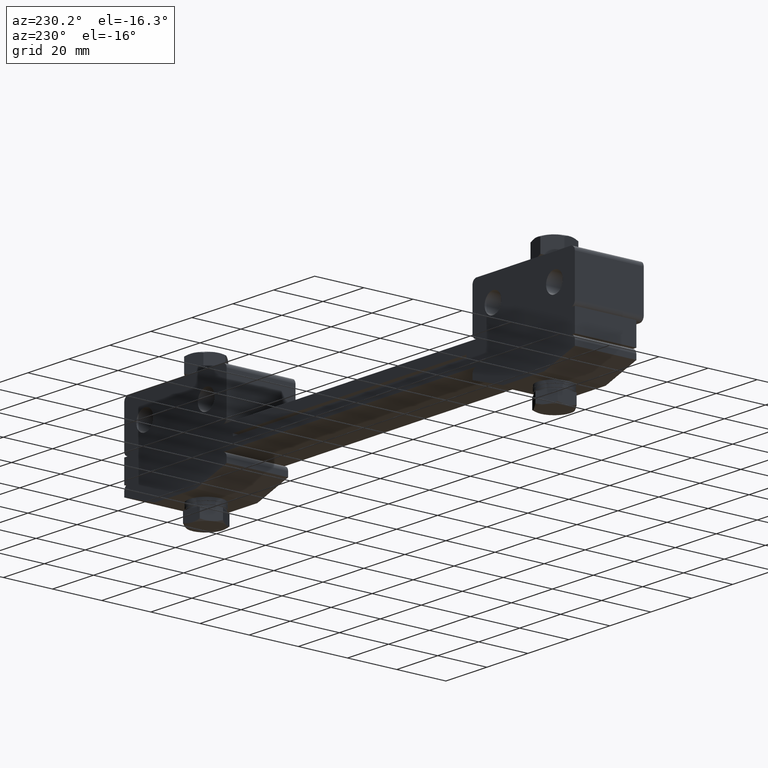
[diagram: clean part render]
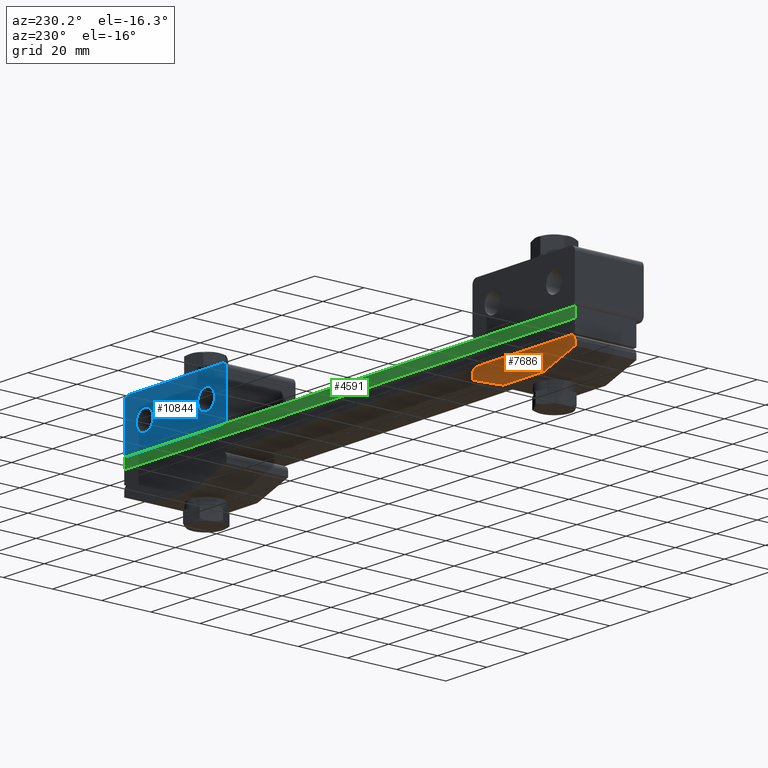
[diagram: same view with three faces highlighted in distinct colors, each labeled with its STEP entity id]
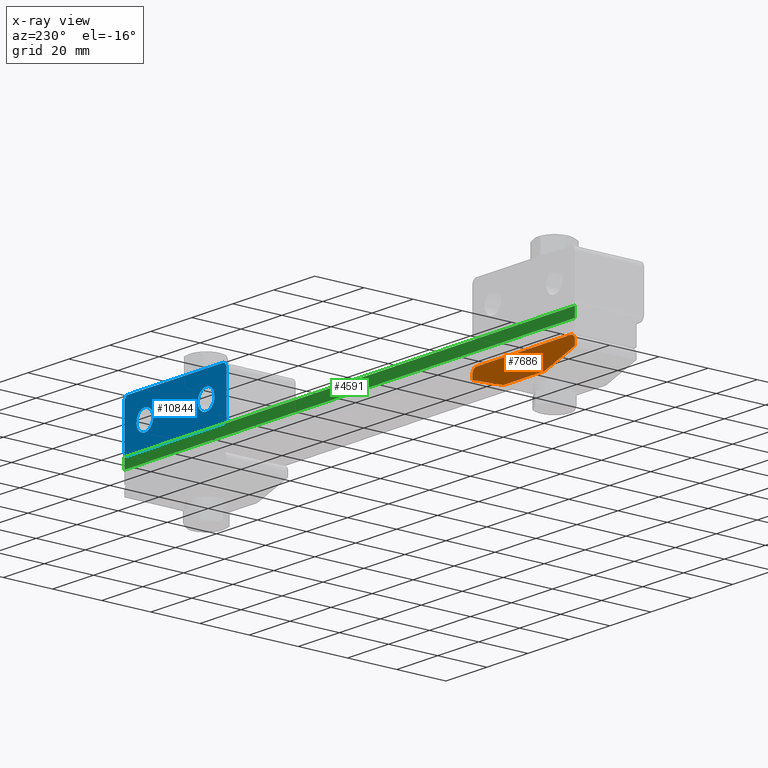
[diagram: x-ray of the same camera — body ghosted, the three highlighted faces saturated]
A machine part, auxiliary view with three faces highlighted in distinct colors.
The next image is the same camera in x-ray (body ghosted, the three faces saturated) — at least one of them is partly hidden behind the body in this view.
Their STEP definitions:

[orange] entity #7686 — the highlighted planar face has unit normal (0, -1, 0).
#778 = CARTESIAN_POINT ( 'NONE',  ( -62.00000000000000000, 12.50000000000000000, 0.0000000000000000000 ) ) ;
#1089 = EDGE_CURVE ( 'NONE', #6719, #17064, #11483, .T. ) ;
#1535 = LINE ( 'NONE', #13650, #2809 ) ;
#1789 = ORIENTED_EDGE ( 'NONE', *, *, #10573, .T. ) ;
#2321 = ORIENTED_EDGE ( 'NONE', *, *, #16285, .T. ) ;
#2809 = VECTOR ( 'NONE', #10353, 1000.000000000000000 ) ;
#3062 = CARTESIAN_POINT ( 'NONE',  ( -60.00000000000000000, 12.50000000000000000, -4.000000000000000000 ) ) ;
#3477 = DIRECTION ( 'NONE',  ( 0.0000000000000000000, -1.000000000000000000, 0.0000000000000000000 ) ) ;
#3925 = VERTEX_POINT ( 'NONE', #6909 ) ;
#4131 = CARTESIAN_POINT ( 'NONE',  ( -110.0000000000000000, 12.50000000000000000, -9.000000000000000000 ) ) ;
#4247 = CARTESIAN_POINT ( 'NONE',  ( -110.0000000000000000, 12.50000000000000000, 0.0000000000000000000 ) ) ;
#5135 = ORIENTED_EDGE ( 'NONE', *, *, #9661, .T. ) ;
#6309 = CARTESIAN_POINT ( 'NONE',  ( -60.00000000000000000, 12.50000000000000000, -2.000000000000000000 ) ) ;
#6719 = VERTEX_POINT ( 'NONE', #10079 ) ;
#6847 = VECTOR ( 'NONE', #7624, 1000.000000000000000 ) ;
#6857 = VERTEX_POINT ( 'NONE', #778 ) ;
#6909 = CARTESIAN_POINT ( 'NONE',  ( -108.0000000000000000, 12.50000000000000000, 0.0000000000000000000 ) ) ;
#7065 = CARTESIAN_POINT ( 'NONE',  ( -110.0000000000000000, 12.50000000000000000, -2.000000000000000000 ) ) ;
#7172 = ORIENTED_EDGE ( 'NONE', *, *, #1089, .T. ) ;
#7624 = DIRECTION ( 'NONE',  ( -1.000000000000000000, 0.0000000000000000000, 0.0000000000000000000 ) ) ;
#7686 = ADVANCED_FACE ( 'NONE', ( #16640 ), #17963, .F. ) ;
#8394 = DIRECTION ( 'NONE',  ( 0.0000000000000000000, 0.0000000000000000000, -1.000000000000000000 ) ) ;
#9661 = EDGE_CURVE ( 'NONE', #12650, #9924, #1535, .T. ) ;
#9750 = AXIS2_PLACEMENT_3D ( 'NONE', #17127, #11980, #10612 ) ;
#9801 = CARTESIAN_POINT ( 'NONE',  ( -110.0000000000000000, 12.50000000000000000, 0.0000000000000000000 ) ) ;
#9924 = VERTEX_POINT ( 'NONE', #3062 ) ;
#9943 = LINE ( 'NONE', #12646, #18573 ) ;
#9945 = DIRECTION ( 'NONE',  ( 0.0000000000000000000, 0.0000000000000000000, -1.000000000000000000 ) ) ;
#9984 = EDGE_LOOP ( 'NONE', ( #19950, #10263, #5135, #2321, #16737, #7172, #18929, #1789 ) ) ;
#10079 = CARTESIAN_POINT ( 'NONE',  ( -95.00000000000000000, 12.50000000000000000, -9.000000000000000000 ) ) ;
#10151 = DIRECTION ( 'NONE',  ( -0.0000000000000000000, 1.000000000000000000, -0.0000000000000000000 ) ) ;
#10263 = ORIENTED_EDGE ( 'NONE', *, *, #11218, .T. ) ;
#10271 = VECTOR ( 'NONE', #14628, 999.9999999999998900 ) ;
#10353 = DIRECTION ( 'NONE',  ( 0.0000000000000000000, 0.0000000000000000000, -1.000000000000000000 ) ) ;
#10573 = EDGE_CURVE ( 'NONE', #12519, #3925, #19503, .T. ) ;
#10612 = DIRECTION ( 'NONE',  ( 0.0000000000000000000, 0.0000000000000000000, -1.000000000000000000 ) ) ;
#10764 = CARTESIAN_POINT ( 'NONE',  ( -110.0000000000000000, 12.50000000000000000, -4.000000000000000000 ) ) ;
#11218 = EDGE_CURVE ( 'NONE', #6857, #12650, #19715, .T. ) ;
#11255 = DIRECTION ( 'NONE',  ( -0.9486832980505137700, 0.0000000000000000000, 0.3162277660168380000 ) ) ;
#11483 = LINE ( 'NONE', #14601, #19052 ) ;
#11880 = VECTOR ( 'NONE', #20527, 1000.000000000000000 ) ;
#11980 = DIRECTION ( 'NONE',  ( -0.0000000000000000000, 1.000000000000000000, -0.0000000000000000000 ) ) ;
#12519 = VERTEX_POINT ( 'NONE', #7065 ) ;
#12646 = CARTESIAN_POINT ( 'NONE',  ( -110.0000000000000000, 12.50000000000000000, 0.0000000000000000000 ) ) ;
#12650 = VERTEX_POINT ( 'NONE', #6309 ) ;
#13314 = CARTESIAN_POINT ( 'NONE',  ( -108.0000000000000000, 12.50000000000000000, -2.000000000000000000 ) ) ;
#13650 = CARTESIAN_POINT ( 'NONE',  ( -60.00000000000000000, 12.50000000000000000, 0.0000000000000000000 ) ) ;
#14601 = CARTESIAN_POINT ( 'NONE',  ( -111.1999999999999900, 12.50000000000000000, -3.600000000000000100 ) ) ;
#14628 = DIRECTION ( 'NONE',  ( -0.9486832980505137700, 0.0000000000000000000, -0.3162277660168380000 ) ) ;
#15128 = LINE ( 'NONE', #20744, #10271 ) ;
#15474 = LINE ( 'NONE', #4131, #6847 ) ;
#15493 = AXIS2_PLACEMENT_3D ( 'NONE', #9801, #3477, #9945 ) ;
#16285 = EDGE_CURVE ( 'NONE', #9924, #20740, #15128, .T. ) ;
#16429 = LINE ( 'NONE', #4247, #11880 ) ;
#16640 = FACE_OUTER_BOUND ( 'NONE', #9984, .T. ) ;
#16737 = ORIENTED_EDGE ( 'NONE', *, *, #19764, .T. ) ;
#17064 = VERTEX_POINT ( 'NONE', #10764 ) ;
#17127 = CARTESIAN_POINT ( 'NONE',  ( -62.00000000000000000, 12.50000000000000000, -2.000000000000000000 ) ) ;
#17963 = PLANE ( 'NONE',  #15493 ) ;
#18000 = EDGE_CURVE ( 'NONE', #12519, #17064, #9943, .T. ) ;
#18111 = AXIS2_PLACEMENT_3D ( 'NONE', #13314, #10151, #8394 ) ;
#18573 = VECTOR ( 'NONE', #18996, 1000.000000000000000 ) ;
#18929 = ORIENTED_EDGE ( 'NONE', *, *, #18000, .F. ) ;
#18996 = DIRECTION ( 'NONE',  ( 0.0000000000000000000, 0.0000000000000000000, -1.000000000000000000 ) ) ;
#19052 = VECTOR ( 'NONE', #11255, 999.9999999999998900 ) ;
#19056 = CARTESIAN_POINT ( 'NONE',  ( -75.00000000000000000, 12.50000000000000000, -9.000000000000000000 ) ) ;
#19503 = CIRCLE ( 'NONE', #18111, 2.000000000000000000 ) ;
#19715 = CIRCLE ( 'NONE', #9750, 2.000000000000000000 ) ;
#19764 = EDGE_CURVE ( 'NONE', #20740, #6719, #15474, .T. ) ;
#19950 = ORIENTED_EDGE ( 'NONE', *, *, #20726, .F. ) ;
#20527 = DIRECTION ( 'NONE',  ( -1.000000000000000000, 0.0000000000000000000, 0.0000000000000000000 ) ) ;
#20726 = EDGE_CURVE ( 'NONE', #6857, #3925, #16429, .T. ) ;
#20740 = VERTEX_POINT ( 'NONE', #19056 ) ;
#20744 = CARTESIAN_POINT ( 'NONE',  ( -103.8000000000000000, 12.50000000000000000, -18.59999999999999800 ) ) ;

[blue] entity #10844 — the highlighted planar face has unit normal (-0, -1, -0).
#79 = AXIS2_PLACEMENT_3D ( 'NONE', #18124, #3427, #9968 ) ;
#242 = CARTESIAN_POINT ( 'NONE',  ( 62.00000000000000000, 12.50000000000000000, 9.000000000000000000 ) ) ;
#389 = EDGE_CURVE ( 'NONE', #8116, #4044, #9849, .T. ) ;
#553 = EDGE_CURVE ( 'NONE', #19079, #8238, #7360, .T. ) ;
#600 = CARTESIAN_POINT ( 'NONE',  ( 62.00000000000000000, 12.50000000000000000, 27.00000000000000000 ) ) ;
#768 = AXIS2_PLACEMENT_3D ( 'NONE', #3860, #5501, #19711 ) ;
#1137 = DIRECTION ( 'NONE',  ( 9.436895709313830600E-016, 1.000000000000000000, 0.0000000000000000000 ) ) ;
#1167 = CARTESIAN_POINT ( 'NONE',  ( 99.99999999999998600, 12.50000000000000000, 14.90000000000000000 ) ) ;
#1173 = EDGE_CURVE ( 'NONE', #3807, #14621, #14550, .T. ) ;
#1208 = DIRECTION ( 'NONE',  ( 0.0000000000000000000, 0.0000000000000000000, 1.000000000000000000 ) ) ;
#1229 = FACE_OUTER_BOUND ( 'NONE', #15563, .T. ) ;
#1293 = VECTOR ( 'NONE', #19396, 1000.000000000000000 ) ;
#1504 = ORIENTED_EDGE ( 'NONE', *, *, #1173, .T. ) ;
#1573 = EDGE_LOOP ( 'NONE', ( #15735, #11972 ) ) ;
#1677 = ORIENTED_EDGE ( 'NONE', *, *, #8191, .T. ) ;
#1679 = AXIS2_PLACEMENT_3D ( 'NONE', #11580, #8458, #5242 ) ;
#1773 = ORIENTED_EDGE ( 'NONE', *, *, #15637, .T. ) ;
#2311 = ORIENTED_EDGE ( 'NONE', *, *, #553, .F. ) ;
#2346 = AXIS2_PLACEMENT_3D ( 'NONE', #12587, #1137, #1208 ) ;
#3203 = EDGE_CURVE ( 'NONE', #8238, #19079, #17438, .T. ) ;
#3427 = DIRECTION ( 'NONE',  ( -9.436895709313830600E-016, -1.000000000000000000, -0.0000000000000000000 ) ) ;
#3692 = DIRECTION ( 'NONE',  ( 9.436895709313830600E-016, 1.000000000000000000, -0.0000000000000000000 ) ) ;
#3807 = VERTEX_POINT ( 'NONE', #17554 ) ;
#3860 = CARTESIAN_POINT ( 'NONE',  ( 100.0000000000000000, 12.50000000000000000, 19.00000000000000000 ) ) ;
#4044 = VERTEX_POINT ( 'NONE', #14797 ) ;
#4871 = DIRECTION ( 'NONE',  ( 0.0000000000000000000, 0.0000000000000000000, 1.000000000000000000 ) ) ;
#4961 = CIRCLE ( 'NONE', #9345, 2.000000000000000000 ) ;
#5242 = DIRECTION ( 'NONE',  ( 0.0000000000000000000, 0.0000000000000000000, -1.000000000000000000 ) ) ;
#5501 = DIRECTION ( 'NONE',  ( 9.436895709313830600E-016, 1.000000000000000000, 0.0000000000000000000 ) ) ;
#5689 = ORIENTED_EDGE ( 'NONE', *, *, #18901, .T. ) ;
#6020 = DIRECTION ( 'NONE',  ( 0.0000000000000000000, 0.0000000000000000000, 1.000000000000000000 ) ) ;
#6725 = CARTESIAN_POINT ( 'NONE',  ( 70.00000000000000000, 12.50000000000000000, 23.09999999999999800 ) ) ;
#6836 = CARTESIAN_POINT ( 'NONE',  ( 110.0000000000000000, 12.50000000000000000, 29.00000000000000000 ) ) ;
#7193 = EDGE_CURVE ( 'NONE', #10420, #9867, #7226, .T. ) ;
#7226 = CIRCLE ( 'NONE', #768, 4.099999999999999600 ) ;
#7360 = CIRCLE ( 'NONE', #2346, 4.099999999999999600 ) ;
#7531 = DIRECTION ( 'NONE',  ( 9.436895709313830600E-016, 1.000000000000000000, 0.0000000000000000000 ) ) ;
#8113 = VECTOR ( 'NONE', #18542, 1000.000000000000000 ) ;
#8112 = CARTESIAN_POINT ( 'NONE',  ( 60.00000000000000000, 12.50000000000000000, 29.00000000000000000 ) ) ;
#8116 = VERTEX_POINT ( 'NONE', #20258 ) ;
#8191 = EDGE_CURVE ( 'NONE', #10860, #12681, #4961, .T. ) ;
#8238 = VERTEX_POINT ( 'NONE', #6725 ) ;
#8294 = DIRECTION ( 'NONE',  ( 9.436895709313830600E-016, 1.000000000000000000, -0.0000000000000000000 ) ) ;
#8458 = DIRECTION ( 'NONE',  ( 9.436895709313830600E-016, 1.000000000000000000, -0.0000000000000000000 ) ) ;
#8545 = CARTESIAN_POINT ( 'NONE',  ( 108.0000000000000000, 12.50000000000000000, 11.00000000000000000 ) ) ;
#9294 = CARTESIAN_POINT ( 'NONE',  ( 110.0000000000000000, 12.50000000000000000, 27.00000000000000000 ) ) ;
#9345 = AXIS2_PLACEMENT_3D ( 'NONE', #14695, #11217, #12830 ) ;
#9459 = DIRECTION ( 'NONE',  ( -1.000000000000000000, -9.436895709313830600E-016, 0.0000000000000000000 ) ) ;
#9849 = LINE ( 'NONE', #15505, #8113 ) ;
#9867 = VERTEX_POINT ( 'NONE', #1167 ) ;
#9968 = DIRECTION ( 'NONE',  ( 0.0000000000000000000, 0.0000000000000000000, -1.000000000000000000 ) ) ;
#10229 = AXIS2_PLACEMENT_3D ( 'NONE', #8545, #3692, #11608 ) ;
#10415 = DIRECTION ( 'NONE',  ( 0.0000000000000000000, 0.0000000000000000000, -1.000000000000000000 ) ) ;
#10420 = VERTEX_POINT ( 'NONE', #12725 ) ;
#10438 = VECTOR ( 'NONE', #13319, 1000.000000000000000 ) ;
#10469 = CARTESIAN_POINT ( 'NONE',  ( 60.00000000000000000, 12.50000000000000000, 27.00000000000000000 ) ) ;
#10844 = ADVANCED_FACE ( 'NONE', ( #13473, #19481, #1229 ), #14843, .F. ) ;
#10860 = VERTEX_POINT ( 'NONE', #242 ) ;
#11075 = ORIENTED_EDGE ( 'NONE', *, *, #389, .F. ) ;
#11217 = DIRECTION ( 'NONE',  ( 9.436895709313830600E-016, 1.000000000000000000, -0.0000000000000000000 ) ) ;
#11559 = CARTESIAN_POINT ( 'NONE',  ( 60.00000000000000000, 12.50000000000000000, 11.00000000000000000 ) ) ;
#11580 = CARTESIAN_POINT ( 'NONE',  ( 108.0000000000000000, 12.50000000000000000, 27.00000000000000000 ) ) ;
#11608 = DIRECTION ( 'NONE',  ( 0.0000000000000000000, 0.0000000000000000000, -1.000000000000000000 ) ) ;
#11850 = CIRCLE ( 'NONE', #19655, 1.999999999999998200 ) ;
#11972 = ORIENTED_EDGE ( 'NONE', *, *, #19405, .F. ) ;
#12469 = CARTESIAN_POINT ( 'NONE',  ( 60.00000000000000000, 12.50000000000000000, 9.000000000000000000 ) ) ;
#12587 = CARTESIAN_POINT ( 'NONE',  ( 70.00000000000000000, 12.50000000000000000, 19.00000000000000000 ) ) ;
#12681 = VERTEX_POINT ( 'NONE', #11559 ) ;
#12725 = CARTESIAN_POINT ( 'NONE',  ( 100.0000000000000000, 12.50000000000000000, 23.09999999999999800 ) ) ;
#12830 = DIRECTION ( 'NONE',  ( 0.0000000000000000000, 0.0000000000000000000, -1.000000000000000000 ) ) ;
#13187 = EDGE_LOOP ( 'NONE', ( #18469, #2311 ) ) ;
#13319 = DIRECTION ( 'NONE',  ( 0.0000000000000000000, 0.0000000000000000000, -1.000000000000000000 ) ) ;
#13473 = FACE_BOUND ( 'NONE', #13187, .T. ) ;
#14257 = AXIS2_PLACEMENT_3D ( 'NONE', #15756, #7531, #6020 ) ;
#14518 = CIRCLE ( 'NONE', #1679, 1.999999999999998200 ) ;
#14550 = CIRCLE ( 'NONE', #10229, 2.000000000000000000 ) ;
#14621 = VERTEX_POINT ( 'NONE', #19042 ) ;
#14630 = CARTESIAN_POINT ( 'NONE',  ( 69.99999999999998600, 12.50000000000000000, 14.90000000000000000 ) ) ;
#14695 = CARTESIAN_POINT ( 'NONE',  ( 62.00000000000000000, 12.50000000000000000, 11.00000000000000000 ) ) ;
#14797 = CARTESIAN_POINT ( 'NONE',  ( 62.00000000000000000, 12.50000000000000000, 29.00000000000000000 ) ) ;
#14843 = PLANE ( 'NONE',  #79 ) ;
#14847 = EDGE_CURVE ( 'NONE', #16099, #3807, #19018, .T. ) ;
#15004 = CIRCLE ( 'NONE', #14257, 4.099999999999999600 ) ;
#15505 = CARTESIAN_POINT ( 'NONE',  ( 60.00000000000000000, 12.50000000000000000, 29.00000000000000000 ) ) ;
#15563 = EDGE_LOOP ( 'NONE', ( #19340, #1504, #1773, #1677, #16494, #16628, #11075, #5689 ) ) ;
#15637 = EDGE_CURVE ( 'NONE', #14621, #10860, #19210, .T. ) ;
#15735 = ORIENTED_EDGE ( 'NONE', *, *, #7193, .F. ) ;
#15756 = CARTESIAN_POINT ( 'NONE',  ( 100.0000000000000000, 12.50000000000000000, 19.00000000000000000 ) ) ;
#16099 = VERTEX_POINT ( 'NONE', #9294 ) ;
#16103 = CARTESIAN_POINT ( 'NONE',  ( 70.00000000000000000, 12.50000000000000000, 19.00000000000000000 ) ) ;
#16236 = VECTOR ( 'NONE', #9459, 1000.000000000000000 ) ;
#16494 = ORIENTED_EDGE ( 'NONE', *, *, #18845, .F. ) ;
#16628 = ORIENTED_EDGE ( 'NONE', *, *, #21022, .T. ) ;
#17438 = CIRCLE ( 'NONE', #19892, 4.099999999999999600 ) ;
#17554 = CARTESIAN_POINT ( 'NONE',  ( 110.0000000000000000, 12.50000000000000000, 11.00000000000000000 ) ) ;
#18124 = CARTESIAN_POINT ( 'NONE',  ( 60.00000000000000000, 12.50000000000000000, 29.00000000000000000 ) ) ;
#18469 = ORIENTED_EDGE ( 'NONE', *, *, #3203, .F. ) ;
#18542 = DIRECTION ( 'NONE',  ( -1.000000000000000000, -9.436895709313830600E-016, 0.0000000000000000000 ) ) ;
#18631 = VERTEX_POINT ( 'NONE', #10469 ) ;
#18845 = EDGE_CURVE ( 'NONE', #18631, #12681, #19039, .T. ) ;
#18901 = EDGE_CURVE ( 'NONE', #8116, #16099, #14518, .T. ) ;
#19018 = LINE ( 'NONE', #6836, #10438 ) ;
#19039 = LINE ( 'NONE', #8112, #1293 ) ;
#19042 = CARTESIAN_POINT ( 'NONE',  ( 108.0000000000000000, 12.50000000000000000, 9.000000000000000000 ) ) ;
#19079 = VERTEX_POINT ( 'NONE', #14630 ) ;
#19210 = LINE ( 'NONE', #12469, #16236 ) ;
#19340 = ORIENTED_EDGE ( 'NONE', *, *, #14847, .T. ) ;
#19396 = DIRECTION ( 'NONE',  ( 0.0000000000000000000, 0.0000000000000000000, -1.000000000000000000 ) ) ;
#19405 = EDGE_CURVE ( 'NONE', #9867, #10420, #15004, .T. ) ;
#19481 = FACE_BOUND ( 'NONE', #1573, .T. ) ;
#19655 = AXIS2_PLACEMENT_3D ( 'NONE', #600, #8294, #10415 ) ;
#19711 = DIRECTION ( 'NONE',  ( 0.0000000000000000000, 0.0000000000000000000, 1.000000000000000000 ) ) ;
#19892 = AXIS2_PLACEMENT_3D ( 'NONE', #16103, #20932, #4871 ) ;
#20258 = CARTESIAN_POINT ( 'NONE',  ( 108.0000000000000000, 12.50000000000000000, 29.00000000000000000 ) ) ;
#20932 = DIRECTION ( 'NONE',  ( 9.436895709313830600E-016, 1.000000000000000000, 0.0000000000000000000 ) ) ;
#21022 = EDGE_CURVE ( 'NONE', #18631, #4044, #11850, .T. ) ;

[green] entity #4591 — the highlighted planar face has unit normal (-0, -1, 0).
#100 = ORIENTED_EDGE ( 'NONE', *, *, #7165, .T. ) ;
#513 = DIRECTION ( 'NONE',  ( 0.0000000000000000000, 0.0000000000000000000, -1.000000000000000000 ) ) ;
#729 = EDGE_LOOP ( 'NONE', ( #100, #17448, #1194, #7013 ) ) ;
#737 = DIRECTION ( 'NONE',  ( 0.0000000000000000000, 0.0000000000000000000, -1.000000000000000000 ) ) ;
#1194 = ORIENTED_EDGE ( 'NONE', *, *, #10599, .F. ) ;
#2308 = AXIS2_PLACEMENT_3D ( 'NONE', #17631, #14459, #6133 ) ;
#2602 = VECTOR ( 'NONE', #737, 1000.000000000000000 ) ;
#3549 = CARTESIAN_POINT ( 'NONE',  ( -110.0000000000000000, 12.50000000000000000, 9.000000000000000000 ) ) ;
#4342 = EDGE_CURVE ( 'NONE', #10889, #15234, #14077, .T. ) ;
#4578 = PLANE ( 'NONE',  #2308 ) ;
#4591 = ADVANCED_FACE ( 'NONE', ( #19338 ), #4578, .F. ) ;
#6133 = DIRECTION ( 'NONE',  ( 1.000000000000000000, -5.519574696289839900E-017, 0.0000000000000000000 ) ) ;
#6391 = VERTEX_POINT ( 'NONE', #17421 ) ;
#6865 = CARTESIAN_POINT ( 'NONE',  ( 110.0000000000000000, 12.50000000000000000, 9.000000000000000000 ) ) ;
#7013 = ORIENTED_EDGE ( 'NONE', *, *, #14748, .T. ) ;
#7165 = EDGE_CURVE ( 'NONE', #15274, #15234, #9216, .T. ) ;
#7374 = CARTESIAN_POINT ( 'NONE',  ( -110.0000000000000000, 12.50000000000000000, 9.000000000000000000 ) ) ;
#9141 = VECTOR ( 'NONE', #513, 1000.000000000000000 ) ;
#9216 = LINE ( 'NONE', #15238, #11535 ) ;
#10173 = LINE ( 'NONE', #6865, #9141 ) ;
#10504 = CARTESIAN_POINT ( 'NONE',  ( -110.0000000000000000, 12.50000000000000000, 5.000000000000000000 ) ) ;
#10599 = EDGE_CURVE ( 'NONE', #6391, #10889, #18735, .T. ) ;
#10664 = VECTOR ( 'NONE', #19832, 1000.000000000000000 ) ;
#10889 = VERTEX_POINT ( 'NONE', #16504 ) ;
#11308 = CARTESIAN_POINT ( 'NONE',  ( 110.0000000000000000, 12.50000000000000000, 5.000000000000000000 ) ) ;
#11535 = VECTOR ( 'NONE', #13485, 1000.000000000000000 ) ;
#13485 = DIRECTION ( 'NONE',  ( -1.000000000000000000, 5.519574696289839900E-017, 0.0000000000000000000 ) ) ;
#14077 = LINE ( 'NONE', #7374, #2602 ) ;
#14459 = DIRECTION ( 'NONE',  ( -5.519574696289839900E-017, -1.000000000000000000, 0.0000000000000000000 ) ) ;
#14748 = EDGE_CURVE ( 'NONE', #6391, #15274, #10173, .T. ) ;
#15234 = VERTEX_POINT ( 'NONE', #10504 ) ;
#15238 = CARTESIAN_POINT ( 'NONE',  ( -110.0000000000000000, 12.50000000000000000, 5.000000000000000000 ) ) ;
#15274 = VERTEX_POINT ( 'NONE', #11308 ) ;
#16504 = CARTESIAN_POINT ( 'NONE',  ( -110.0000000000000000, 12.50000000000000000, 9.000000000000000000 ) ) ;
#17421 = CARTESIAN_POINT ( 'NONE',  ( 110.0000000000000000, 12.50000000000000000, 9.000000000000000000 ) ) ;
#17448 = ORIENTED_EDGE ( 'NONE', *, *, #4342, .F. ) ;
#17631 = CARTESIAN_POINT ( 'NONE',  ( -110.0000000000000000, 12.50000000000000000, 9.000000000000000000 ) ) ;
#18735 = LINE ( 'NONE', #3549, #10664 ) ;
#19338 = FACE_OUTER_BOUND ( 'NONE', #729, .T. ) ;
#19832 = DIRECTION ( 'NONE',  ( -1.000000000000000000, 5.519574696289839900E-017, 0.0000000000000000000 ) ) ;